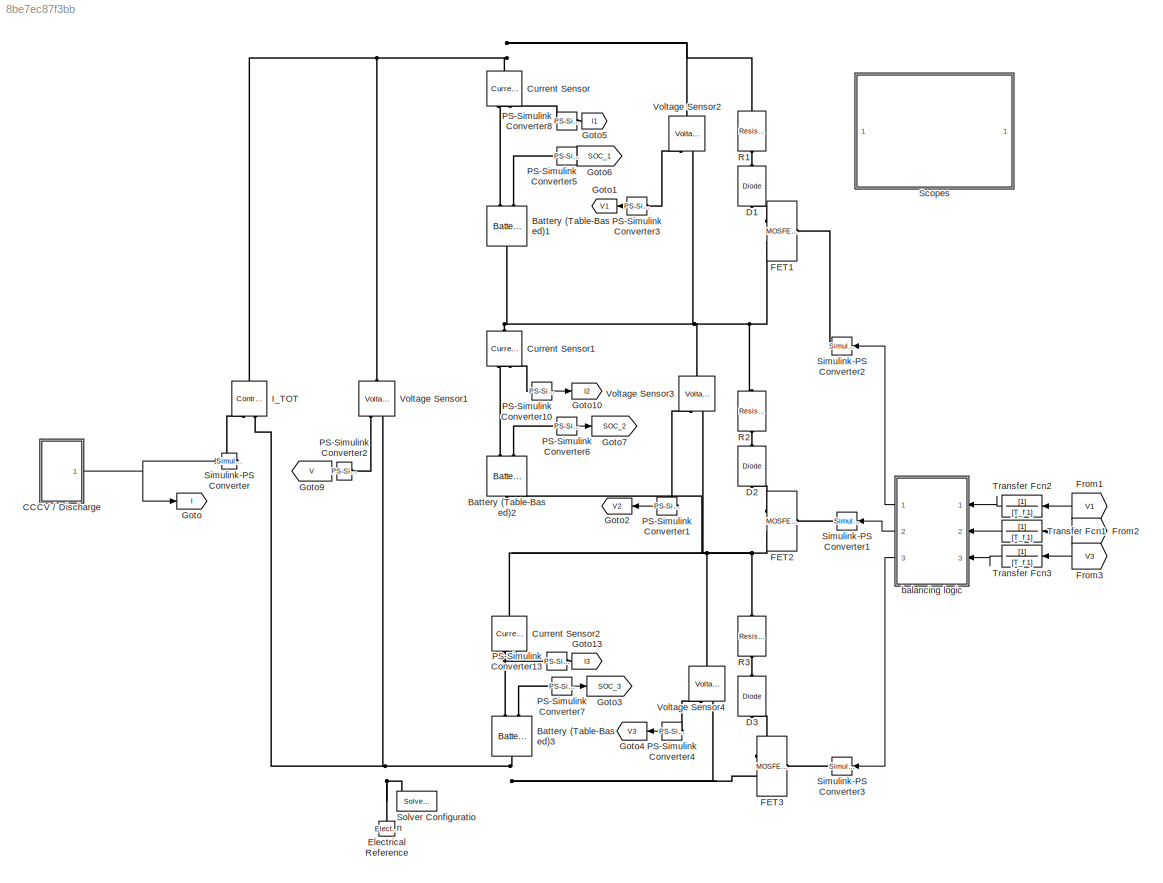
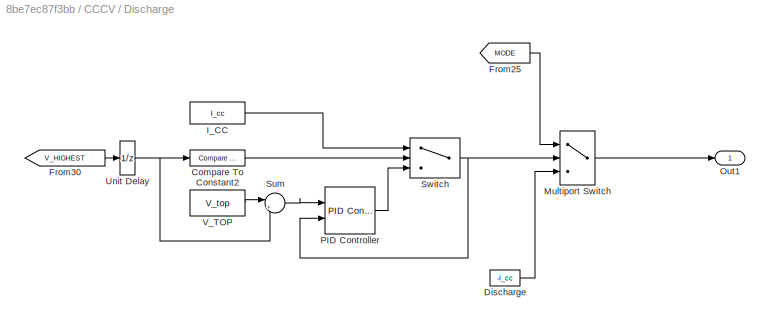
MODEL slx_8be7ec87f3bb
KIND model
CONFIG AbsTol = 1e-3
CONFIG EnableMultiTasking = on
CONFIG FixedStep = auto
CONFIG MaxStep = .5
CONFIG MinStep = auto
CONFIG PreLoadFcn = passiveBalancing_ini;
CONFIG RelTol = 1e-3
CONFIG SampleTimeConstraint = Unconstrained
CONFIG SolverName = ode23t
CONFIG StartTime = 0.0
CONFIG StopTime = 3600 * 15
WORKSPACE source: mxarray member
WORKSPACE Switch = 1
BLOCK [Reference] Battery (Table-Based)1  REF=ee_lib/Sources/Battery
(Table-Based)
  AttributesFormatString = UR18650A
  NameLocation = right
  Ports = [0, 0, 0, 0, 0, 2, 1]
  SourceBlock = ee_lib/Sources/Battery\n(Table-Based)
  SourceProductBaseCode = PS
  SourceType = Battery\n(Table-Based)
  Tag = {'toolbox/physmod/elec/library/m/ee_lib_parts';'Sources/Battery__Table_Based_/Panasonic/UR18650A.xml'}
BLOCK [Reference] Battery (Table-Based)2  REF=ee_lib/Sources/Battery
(Table-Based)
  AttributesFormatString = UR18650A
  NameLocation = right
  Ports = [0, 0, 0, 0, 0, 2, 1]
  SourceBlock = ee_lib/Sources/Battery\n(Table-Based)
  SourceProductBaseCode = PS
  SourceType = Battery\n(Table-Based)
  Tag = {'toolbox/physmod/elec/library/m/ee_lib_parts';'Sources/Battery__Table_Based_/Panasonic/UR18650A.xml'}
BLOCK [Reference] Battery (Table-Based)3  REF=ee_lib/Sources/Battery
(Table-Based)
  AttributesFormatString = UR18650A
  NameLocation = right
  Ports = [0, 0, 0, 0, 0, 2, 1]
  SourceBlock = ee_lib/Sources/Battery\n(Table-Based)
  SourceProductBaseCode = PS
  SourceType = Battery\n(Table-Based)
  Tag = {'toolbox/physmod/elec/library/m/ee_lib_parts';'Sources/Battery__Table_Based_/Panasonic/UR18650A.xml'}
BLOCK [SubSystem] CCCV // Discharge
  Ports = [0, 1]
  RequestExecContextInheritance = off
BLOCK [Reference] CCCV // Discharge/Compare To Constant2  REF=simulink/Logic and Bit
Operations/Compare
To Constant
  Ports = [1, 1]
  SourceBlock = simulink/Logic and Bit\nOperations/Compare\nTo Constant
  SourceProductBaseCode = SL
  SourceType = Compare To Constant
BLOCK [Constant] CCCV // Discharge/Discharge
  Value = -I_cc
BLOCK [From] CCCV // Discharge/From25
  GotoTag = MODE
  TagVisibility = global
BLOCK [From] CCCV // Discharge/From30
  GotoTag = V_HIGHEST
  TagVisibility = global
BLOCK [Constant] CCCV // Discharge/I_CC
  Value = I_cc
BLOCK [MultiPortSwitch] CCCV // Discharge/Multiport Switch
  DataPortIndices = {1,2}
  DataPortOrder = Specify indices
  DiagnosticForDefault = None
  InputSameDT = off
  Ports = [3, 1]
  SaturateOnIntegerOverflow = off
BLOCK [Outport] CCCV // Discharge/Out1
BLOCK [Reference] CCCV // Discharge/PID Controller  REF=pid_lib/PID Controller
  Ports = [2, 1]
  SourceBlock = pid_lib/PID Controller
  SourceProductBaseCode = SL
  SourceType = PID 1dof
BLOCK [Sum] CCCV // Discharge/Sum
  Inputs = |+-
  Ports = [2, 1]
BLOCK [Switch] CCCV // Discharge/Switch
  Criteria = u2 > Threshold
  InputSameDT = off
  SaturateOnIntegerOverflow = off
BLOCK [UnitDelay] CCCV // Discharge/Unit Delay
  HasFrameUpgradeWarning = on
  SampleTime = -1
BLOCK [Constant] CCCV // Discharge/V_TOP
  Value = V_top
BLOCK [Reference] Current Sensor  REF=fl_lib/Electrical/Electrical Sensors/Current Sensor
  NameLocation = left
  Ports = [0, 0, 0, 0, 0, 1, 2]
  SourceBlock = fl_lib/Electrical/Electrical Sensors/Current Sensor
  SourceProductBaseCode = SS
  SourceType = Current Sensor
BLOCK [Reference] Current Sensor1  REF=fl_lib/Electrical/Electrical Sensors/Current Sensor
  NameLocation = left
  Ports = [0, 0, 0, 0, 0, 1, 2]
  SourceBlock = fl_lib/Electrical/Electrical Sensors/Current Sensor
  SourceProductBaseCode = SS
  SourceType = Current Sensor
BLOCK [Reference] Current Sensor2  REF=fl_lib/Electrical/Electrical Sensors/Current Sensor
  NameLocation = left
  Ports = [0, 0, 0, 0, 0, 1, 2]
  SourceBlock = fl_lib/Electrical/Electrical Sensors/Current Sensor
  SourceProductBaseCode = SS
  SourceType = Current Sensor
BLOCK [Reference] D1  REF=fl_lib/Electrical/Electrical Elements/Diode
  NameLocation = left
  Ports = [0, 0, 0, 0, 0, 1, 1]
  SourceBlock = fl_lib/Electrical/Electrical Elements/Diode
  SourceProductBaseCode = SS
  SourceType = Diode
BLOCK [Reference] D2  REF=fl_lib/Electrical/Electrical Elements/Diode
  NameLocation = left
  Ports = [0, 0, 0, 0, 0, 1, 1]
  SourceBlock = fl_lib/Electrical/Electrical Elements/Diode
  SourceProductBaseCode = SS
  SourceType = Diode
BLOCK [Reference] D3  REF=fl_lib/Electrical/Electrical Elements/Diode
  NameLocation = left
  Ports = [0, 0, 0, 0, 0, 1, 1]
  SourceBlock = fl_lib/Electrical/Electrical Elements/Diode
  SourceProductBaseCode = SS
  SourceType = Diode
BLOCK [Reference] Electrical Reference  REF=fl_lib/Electrical/Electrical Elements/Electrical Reference
  NameLocation = right
  Ports = [0, 0, 0, 0, 0, 1]
  SourceBlock = fl_lib/Electrical/Electrical Elements/Electrical Reference
  SourceProductBaseCode = SS
  SourceType = Electrical Reference
BLOCK [Reference] FET1  REF=ee_lib/Semiconductors &
Converters/MOSFET
(Ideal,
Switching)
  Ports = [0, 0, 0, 0, 0, 1, 2]
  SourceBlock = ee_lib/Semiconductors &\nConverters/MOSFET\n(Ideal,\nSwitching)
  SourceProductBaseCode = PS
  SourceType = MOSFET\n(Ideal,\nSwitching)
BLOCK [Reference] FET2  REF=ee_lib/Semiconductors &
Converters/MOSFET
(Ideal,
Switching)
  Ports = [0, 0, 0, 0, 0, 1, 2]
  SourceBlock = ee_lib/Semiconductors &\nConverters/MOSFET\n(Ideal,\nSwitching)
  SourceProductBaseCode = PS
  SourceType = MOSFET\n(Ideal,\nSwitching)
BLOCK [Reference] FET3  REF=ee_lib/Semiconductors &
Converters/MOSFET
(Ideal,
Switching)
  Ports = [0, 0, 0, 0, 0, 1, 2]
  SourceBlock = ee_lib/Semiconductors &\nConverters/MOSFET\n(Ideal,\nSwitching)
  SourceProductBaseCode = PS
  SourceType = MOSFET\n(Ideal,\nSwitching)
BLOCK [From] From1
  GotoTag = V1
  TagVisibility = global
BLOCK [From] From2
  GotoTag = V2
  TagVisibility = global
BLOCK [From] From3
  GotoTag = V3
  TagVisibility = global
BLOCK [Goto] Goto
  GotoTag = I
  TagVisibility = global
BLOCK [Goto] Goto1
  GotoTag = V1
  NameLocation = top
  TagVisibility = global
BLOCK [Goto] Goto10
  GotoTag = I2
  TagVisibility = global
BLOCK [Goto] Goto13
  GotoTag = I3
  TagVisibility = global
BLOCK [Goto] Goto2
  GotoTag = V2
  NameLocation = top
  TagVisibility = global
BLOCK [Goto] Goto3
  GotoTag = SOC_3
  TagVisibility = global
BLOCK [Goto] Goto4
  GotoTag = V3
  NameLocation = top
  TagVisibility = global
BLOCK [Goto] Goto5
  GotoTag = I1
  TagVisibility = global
BLOCK [Goto] Goto6
  GotoTag = SOC_1
  TagVisibility = global
BLOCK [Goto] Goto7
  GotoTag = SOC_2
  TagVisibility = global
BLOCK [Goto] Goto9
  GotoTag = V
  NameLocation = top
  TagVisibility = global
BLOCK [Reference] I_TOT  REF=fl_lib/Electrical/Electrical Sources/Controlled Current
Source
  NameLocation = left
  Ports = [0, 0, 0, 0, 0, 1, 2]
  SourceBlock = fl_lib/Electrical/Electrical Sources/Controlled Current\nSource
  SourceProductBaseCode = SS
  SourceType = Controlled Current\nSource
BLOCK [Reference] PS-Simulink Converter1  REF=nesl_utility/PS-Simulink
Converter
  NameLocation = top
  Ports = [0, 1, 0, 0, 0, 1]
  SourceBlock = nesl_utility/PS-Simulink\nConverter
  SourceProductBaseCode = SS
  SourceType = PS-Simulink\nConverter
BLOCK [Reference] PS-Simulink Converter10  REF=nesl_utility/PS-Simulink
Converter
  Ports = [0, 1, 0, 0, 0, 1]
  SourceBlock = nesl_utility/PS-Simulink\nConverter
  SourceProductBaseCode = SS
  SourceType = PS-Simulink\nConverter
BLOCK [Reference] PS-Simulink Converter13  REF=nesl_utility/PS-Simulink
Converter
  Ports = [0, 1, 0, 0, 0, 1]
  SourceBlock = nesl_utility/PS-Simulink\nConverter
  SourceProductBaseCode = SS
  SourceType = PS-Simulink\nConverter
BLOCK [Reference] PS-Simulink Converter2  REF=nesl_utility/PS-Simulink
Converter
  NameLocation = top
  Ports = [0, 1, 0, 0, 0, 1]
  SourceBlock = nesl_utility/PS-Simulink\nConverter
  SourceProductBaseCode = SS
  SourceType = PS-Simulink\nConverter
BLOCK [Reference] PS-Simulink Converter3  REF=nesl_utility/PS-Simulink
Converter
  NameLocation = top
  Ports = [0, 1, 0, 0, 0, 1]
  SourceBlock = nesl_utility/PS-Simulink\nConverter
  SourceProductBaseCode = SS
  SourceType = PS-Simulink\nConverter
BLOCK [Reference] PS-Simulink Converter4  REF=nesl_utility/PS-Simulink
Converter
  NameLocation = top
  Ports = [0, 1, 0, 0, 0, 1]
  SourceBlock = nesl_utility/PS-Simulink\nConverter
  SourceProductBaseCode = SS
  SourceType = PS-Simulink\nConverter
BLOCK [Reference] PS-Simulink Converter5  REF=nesl_utility/PS-Simulink
Converter
  Ports = [0, 1, 0, 0, 0, 1]
  SourceBlock = nesl_utility/PS-Simulink\nConverter
  SourceProductBaseCode = SS
  SourceType = PS-Simulink\nConverter
BLOCK [Reference] PS-Simulink Converter6  REF=nesl_utility/PS-Simulink
Converter
  Ports = [0, 1, 0, 0, 0, 1]
  SourceBlock = nesl_utility/PS-Simulink\nConverter
  SourceProductBaseCode = SS
  SourceType = PS-Simulink\nConverter
BLOCK [Reference] PS-Simulink Converter7  REF=nesl_utility/PS-Simulink
Converter
  Ports = [0, 1, 0, 0, 0, 1]
  SourceBlock = nesl_utility/PS-Simulink\nConverter
  SourceProductBaseCode = SS
  SourceType = PS-Simulink\nConverter
BLOCK [Reference] PS-Simulink Converter8  REF=nesl_utility/PS-Simulink
Converter
  Ports = [0, 1, 0, 0, 0, 1]
  SourceBlock = nesl_utility/PS-Simulink\nConverter
  SourceProductBaseCode = SS
  SourceType = PS-Simulink\nConverter
BLOCK [Reference] R1  REF=fl_lib/Electrical/Electrical Elements/Resistor
  NameLocation = left
  Ports = [0, 0, 0, 0, 0, 1, 1]
  SourceBlock = fl_lib/Electrical/Electrical Elements/Resistor
  SourceProductBaseCode = SS
  SourceType = Resistor
BLOCK [Reference] R2  REF=fl_lib/Electrical/Electrical Elements/Resistor
  NameLocation = left
  Ports = [0, 0, 0, 0, 0, 1, 1]
  SourceBlock = fl_lib/Electrical/Electrical Elements/Resistor
  SourceProductBaseCode = SS
  SourceType = Resistor
BLOCK [Reference] R3  REF=fl_lib/Electrical/Electrical Elements/Resistor
  NameLocation = left
  Ports = [0, 0, 0, 0, 0, 1, 1]
  SourceBlock = fl_lib/Electrical/Electrical Elements/Resistor
  SourceProductBaseCode = SS
  SourceType = Resistor
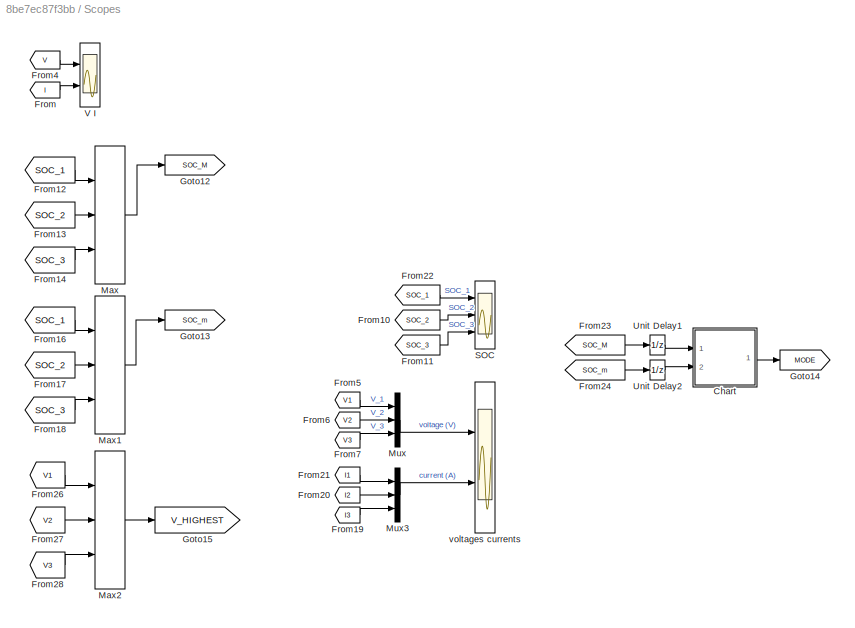
BLOCK [SubSystem] Scopes
  Ports = []
  RequestExecContextInheritance = off
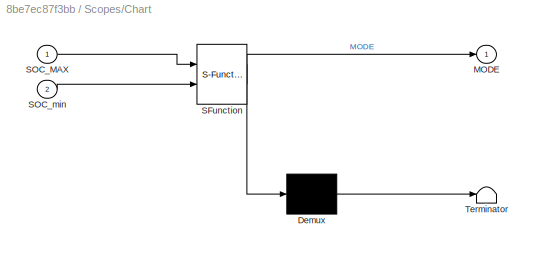
BLOCK [SubSystem] Scopes/Chart
  ErrorFcn = Stateflow.Translate.translate
  PermitHierarchicalResolution = ExplicitOnly
  Ports = [2, 1]
  RequestExecContextInheritance = off
  SFBlockType = Chart
  TreatAsAtomicUnit = on
BLOCK [Demux] Scopes/Chart/ Demux 
  Outputs = 1
  Ports = [1, 1]
BLOCK [S-Function] Scopes/Chart/ SFunction 
  EnableBusSupport = on
  FunctionName = sf_sfun
  PortCounts = [2 2]
  Ports = [2, 2]
  SFcnIsStateOwnerBlock = off
  SFunctionDeploymentMode = off
  Tag = Stateflow S-Function 3
BLOCK [Terminator] Scopes/Chart/ Terminator 
BLOCK [Outport] Scopes/Chart/MODE
BLOCK [Inport] Scopes/Chart/SOC_MAX
BLOCK [Inport] Scopes/Chart/SOC_min
  Port = 2
BLOCK [From] Scopes/From
  GotoTag = I
  TagVisibility = global
BLOCK [From] Scopes/From10
  GotoTag = SOC_2
  TagVisibility = global
BLOCK [From] Scopes/From11
  GotoTag = SOC_3
  TagVisibility = global
BLOCK [From] Scopes/From12
  GotoTag = SOC_1
  TagVisibility = global
BLOCK [From] Scopes/From13
  GotoTag = SOC_2
  TagVisibility = global
BLOCK [From] Scopes/From14
  GotoTag = SOC_3
  TagVisibility = global
BLOCK [From] Scopes/From16
  GotoTag = SOC_1
  TagVisibility = global
BLOCK [From] Scopes/From17
  GotoTag = SOC_2
  TagVisibility = global
BLOCK [From] Scopes/From18
  GotoTag = SOC_3
  TagVisibility = global
BLOCK [From] Scopes/From19
  GotoTag = I3
  TagVisibility = global
BLOCK [From] Scopes/From20
  GotoTag = I2
  TagVisibility = global
BLOCK [From] Scopes/From21
  GotoTag = I1
  TagVisibility = global
BLOCK [From] Scopes/From22
  GotoTag = SOC_1
  TagVisibility = global
BLOCK [From] Scopes/From23
  GotoTag = SOC_M
  TagVisibility = global
BLOCK [From] Scopes/From24
  GotoTag = SOC_m
  TagVisibility = global
BLOCK [From] Scopes/From26
  GotoTag = V1
  TagVisibility = global
BLOCK [From] Scopes/From27
  GotoTag = V2
  TagVisibility = global
BLOCK [From] Scopes/From28
  GotoTag = V3
  TagVisibility = global
BLOCK [From] Scopes/From4
  GotoTag = V
  TagVisibility = global
BLOCK [From] Scopes/From5
  GotoTag = V1
  TagVisibility = global
BLOCK [From] Scopes/From6
  GotoTag = V2
  TagVisibility = global
BLOCK [From] Scopes/From7
  GotoTag = V3
  TagVisibility = global
BLOCK [Goto] Scopes/Goto12
  GotoTag = SOC_M
  TagVisibility = global
BLOCK [Goto] Scopes/Goto13
  GotoTag = SOC_m
  TagVisibility = global
BLOCK [Goto] Scopes/Goto14
  GotoTag = MODE
  TagVisibility = global
BLOCK [Goto] Scopes/Goto15
  GotoTag = V_HIGHEST
  TagVisibility = global
BLOCK [MinMax] Scopes/Max
  Function = max
  Inputs = 3
  Ports = [3, 1]
BLOCK [MinMax] Scopes/Max1
  Inputs = 3
  Ports = [3, 1]
BLOCK [MinMax] Scopes/Max2
  Function = max
  Inputs = 3
  Ports = [3, 1]
BLOCK [Mux] Scopes/Mux
  DisplayOption = bar
  Inputs = 3
  Ports = [3, 1]
BLOCK [Mux] Scopes/Mux3
  DisplayOption = bar
  Inputs = 3
  NameLocation = top
  Ports = [3, 1]
BLOCK [Scope] Scopes/SOC
  Floating = off
  NumInputPorts = 3
  Ports = [3]
  ScopeSpecificationString = Simulink.scopes.TimeScopeBlockCfg('CurrentConfiguration', extmgr.ConfigurationSet(extmgr.Configuration('Core','General UI',true),extmgr.Configuration('Core','Source UI',true),extmgr.Configuration('Sources','WiredSimulink',true,'DataLoggingVariableName','ScopeData1'),extmgr.Configuration('Visuals','Time Domain',true,'SerializedDisplays',{struct('MinYLimReal','0.1076','MaxYLimReal','1.02103','YLabel...<+2002ch>
BLOCK [UnitDelay] Scopes/Unit Delay1
  HasFrameUpgradeWarning = on
  InitialCondition = 1
  SampleTime = -1
BLOCK [UnitDelay] Scopes/Unit Delay2
  HasFrameUpgradeWarning = on
  InitialCondition = 1
  SampleTime = -1
BLOCK [Scope] Scopes/V I
  Floating = off
  NumInputPorts = 2
  Ports = [2]
  ScopeSpecificationString = Simulink.scopes.TimeScopeBlockCfg('CurrentConfiguration', extmgr.ConfigurationSet(extmgr.Configuration('Core','General UI',true),extmgr.Configuration('Core','Source UI',true),extmgr.Configuration('Sources','WiredSimulink',true),extmgr.Configuration('Visuals','Time Domain',true,'SerializedDisplays',{struct('MinYLimReal','10.67877','MaxYLimReal','11.98894','YLabelReal','Voltage(V)','MinYLimMag','10....<+2278ch>
BLOCK [Scope] Scopes/voltages currents
  Floating = off
  NumInputPorts = 2
  Ports = [2]
  ScopeSpecificationString = Simulink.scopes.TimeScopeBlockCfg('CurrentConfiguration', extmgr.ConfigurationSet(extmgr.Configuration('Core','General UI',true),extmgr.Configuration('Core','Source UI',true),extmgr.Configuration('Sources','WiredSimulink',true,'DataLoggingVariableName','ScopeData3'),extmgr.Configuration('Visuals','Time Domain',true,'SerializedDisplays',{struct('MinYLimReal','3.44279','MaxYLimReal','4.17778','YLabe...<+2357ch>
BLOCK [Reference] Simulink-PS Converter  REF=nesl_utility/Simulink-PS
Converter
  Ports = [1, 0, 0, 0, 0, 0, 1]
  SourceBlock = nesl_utility/Simulink-PS\nConverter
  SourceProductBaseCode = SS
  SourceType = Simulink-PS\nConverter
BLOCK [Reference] Simulink-PS Converter1  REF=nesl_utility/Simulink-PS
Converter
  Ports = [1, 0, 0, 0, 0, 0, 1]
  SourceBlock = nesl_utility/Simulink-PS\nConverter
  SourceProductBaseCode = SS
  SourceType = Simulink-PS\nConverter
BLOCK [Reference] Simulink-PS Converter2  REF=nesl_utility/Simulink-PS
Converter
  Ports = [1, 0, 0, 0, 0, 0, 1]
  SourceBlock = nesl_utility/Simulink-PS\nConverter
  SourceProductBaseCode = SS
  SourceType = Simulink-PS\nConverter
BLOCK [Reference] Simulink-PS Converter3  REF=nesl_utility/Simulink-PS
Converter
  Ports = [1, 0, 0, 0, 0, 0, 1]
  SourceBlock = nesl_utility/Simulink-PS\nConverter
  SourceProductBaseCode = SS
  SourceType = Simulink-PS\nConverter
BLOCK [Reference] Solver Configuration  REF=nesl_utility/Solver
Configuration
  Ports = [0, 0, 0, 0, 0, 0, 1]
  SourceBlock = nesl_utility/Solver\nConfiguration
  SourceProductBaseCode = SS
  SourceType = Solver\nConfiguration
BLOCK [TransferFcn] Transfer Fcn1
  Denominator = [T_f 1]
BLOCK [TransferFcn] Transfer Fcn2
  Denominator = [T_f 1]
BLOCK [TransferFcn] Transfer Fcn3
  Denominator = [T_f 1]
BLOCK [Reference] Voltage Sensor1  REF=fl_lib/Electrical/Electrical Sensors/Voltage Sensor
  NameLocation = right
  Ports = [0, 0, 0, 0, 0, 1, 2]
  SourceBlock = fl_lib/Electrical/Electrical Sensors/Voltage Sensor
  SourceProductBaseCode = SS
  SourceType = Voltage Sensor
BLOCK [Reference] Voltage Sensor2  REF=fl_lib/Electrical/Electrical Sensors/Voltage Sensor
  NameLocation = right
  Ports = [0, 0, 0, 0, 0, 1, 2]
  SourceBlock = fl_lib/Electrical/Electrical Sensors/Voltage Sensor
  SourceProductBaseCode = SS
  SourceType = Voltage Sensor
BLOCK [Reference] Voltage Sensor3  REF=fl_lib/Electrical/Electrical Sensors/Voltage Sensor
  NameLocation = right
  Ports = [0, 0, 0, 0, 0, 1, 2]
  SourceBlock = fl_lib/Electrical/Electrical Sensors/Voltage Sensor
  SourceProductBaseCode = SS
  SourceType = Voltage Sensor
BLOCK [Reference] Voltage Sensor4  REF=fl_lib/Electrical/Electrical Sensors/Voltage Sensor
  NameLocation = right
  Ports = [0, 0, 0, 0, 0, 1, 2]
  SourceBlock = fl_lib/Electrical/Electrical Sensors/Voltage Sensor
  SourceProductBaseCode = SS
  SourceType = Voltage Sensor
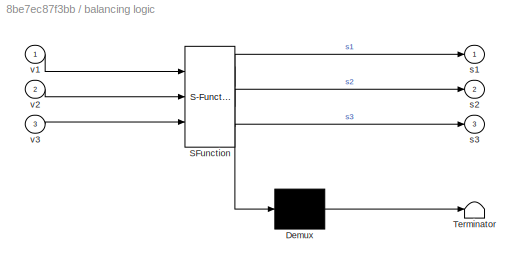
BLOCK [SubSystem] balancing logic
  ErrorFcn = Stateflow.Translate.translate
  NameLocation = top
  PermitHierarchicalResolution = ExplicitOnly
  Ports = [3, 3]
  RequestExecContextInheritance = off
  SFBlockType = Chart
  TreatAsAtomicUnit = on
  VariantControl = (default)
BLOCK [Demux] balancing logic/ Demux 
  Outputs = 1
  Ports = [1, 1]
BLOCK [S-Function] balancing logic/ SFunction 
  EnableBusSupport = on
  FunctionName = sf_sfun
  Parameters = dV
  PortCounts = [3 4]
  Ports = [3, 4]
  SFcnIsStateOwnerBlock = off
  SFunctionDeploymentMode = off
  Tag = Stateflow S-Function 1
BLOCK [Terminator] balancing logic/ Terminator 
BLOCK [Outport] balancing logic/s1
  VectorParamsAs1DForOutWhenUnconnected = off
BLOCK [Outport] balancing logic/s2
  Port = 2
  VectorParamsAs1DForOutWhenUnconnected = off
BLOCK [Outport] balancing logic/s3
  Port = 3
  VectorParamsAs1DForOutWhenUnconnected = off
BLOCK [Inport] balancing logic/v1
BLOCK [Inport] balancing logic/v2
  Port = 2
BLOCK [Inport] balancing logic/v3
  Port = 3
LINE CCCV // Discharge/Compare To Constant2:1 -> CCCV // Discharge/Switch:2
LINE CCCV // Discharge/Discharge:1 -> CCCV // Discharge/Multiport Switch:3
LINE CCCV // Discharge/From25:1 -> CCCV // Discharge/Multiport Switch:1
LINE CCCV // Discharge/From30:1 -> CCCV // Discharge/Unit Delay:1
LINE CCCV // Discharge/I_CC:1 -> CCCV // Discharge/Switch:1
LINE CCCV // Discharge/Multiport Switch:1 -> CCCV // Discharge/Out1:1
LINE CCCV // Discharge/PID Controller:1 -> CCCV // Discharge/Switch:3
LINE CCCV // Discharge/Sum:1 -> CCCV // Discharge/PID Controller:1
NET CCCV // Discharge/Switch:1 -> CCCV // Discharge/Multiport Switch:2, CCCV // Discharge/PID Controller:2
NET CCCV // Discharge/Unit Delay:1 -> CCCV // Discharge/Compare To Constant2:1, CCCV // Discharge/Sum:2
LINE CCCV // Discharge/V_TOP:1 -> CCCV // Discharge/Sum:1
NET CCCV // Discharge:1 -> Goto:1, Simulink-PS Converter:1
LINE From1:1 -> Transfer Fcn2:1
LINE From2:1 -> Transfer Fcn1:1
LINE From3:1 -> Transfer Fcn3:1
LINE PS-Simulink Converter10:1 -> Goto10:1
LINE PS-Simulink Converter13:1 -> Goto13:1
LINE PS-Simulink Converter1:1 -> Goto2:1
LINE PS-Simulink Converter2:1 -> Goto9:1
LINE PS-Simulink Converter3:1 -> Goto1:1
LINE PS-Simulink Converter4:1 -> Goto4:1
LINE PS-Simulink Converter5:1 -> Goto6:1
LINE PS-Simulink Converter6:1 -> Goto7:1
LINE PS-Simulink Converter7:1 -> Goto3:1
LINE PS-Simulink Converter8:1 -> Goto5:1
LINE Scopes/Chart:1 -> Scopes/Goto14:1
LINE Scopes/From10:1 -> Scopes/SOC:2
LINE Scopes/From11:1 -> Scopes/SOC:3
LINE Scopes/From12:1 -> Scopes/Max:1
LINE Scopes/From13:1 -> Scopes/Max:2
LINE Scopes/From14:1 -> Scopes/Max:3
LINE Scopes/From16:1 -> Scopes/Max1:1
LINE Scopes/From17:1 -> Scopes/Max1:2
LINE Scopes/From18:1 -> Scopes/Max1:3
LINE Scopes/From19:1 -> Scopes/Mux3:3
LINE Scopes/From20:1 -> Scopes/Mux3:2
LINE Scopes/From21:1 -> Scopes/Mux3:1
LINE Scopes/From22:1 -> Scopes/SOC:1
LINE Scopes/From23:1 -> Scopes/Unit Delay1:1
LINE Scopes/From24:1 -> Scopes/Unit Delay2:1
LINE Scopes/From26:1 -> Scopes/Max2:1
LINE Scopes/From27:1 -> Scopes/Max2:2
LINE Scopes/From28:1 -> Scopes/Max2:3
LINE Scopes/From4:1 -> Scopes/V I:1
LINE Scopes/From5:1 -> Scopes/Mux:1
LINE Scopes/From6:1 -> Scopes/Mux:2
LINE Scopes/From7:1 -> Scopes/Mux:3
LINE Scopes/From:1 -> Scopes/V I:2
LINE Scopes/Max1:1 -> Scopes/Goto13:1
LINE Scopes/Max2:1 -> Scopes/Goto15:1
LINE Scopes/Max:1 -> Scopes/Goto12:1
LINE Scopes/Mux3:1 -> Scopes/voltages currents:2
LINE Scopes/Mux:1 -> Scopes/voltages currents:1
LINE Scopes/Unit Delay1:1 -> Scopes/Chart:1
LINE Scopes/Unit Delay2:1 -> Scopes/Chart:2
LINE Transfer Fcn1:1 -> balancing logic:2
LINE Transfer Fcn2:1 -> balancing logic:1
LINE Transfer Fcn3:1 -> balancing logic:3
LINE balancing logic:1 -> Simulink-PS Converter2:1
LINE balancing logic:2 -> Simulink-PS Converter1:1
LINE balancing logic:3 -> Simulink-PS Converter3:1
PLINE Battery (Table-Based)1:LConn1 -- Current Sensor:RConn2
PLINE Battery (Table-Based)1:LConn2 -- PS-Simulink Converter5:LConn1
PNET net1: Battery (Table-Based)1:RConn1 -- Current Sensor1:LConn1 -- FET1:RConn2 -- R2:LConn1 -- Voltage Sensor2:RConn2 -- Voltage Sensor3:LConn1
PLINE Battery (Table-Based)2:LConn1 -- Current Sensor1:RConn2
PLINE Battery (Table-Based)2:LConn2 -- PS-Simulink Converter6:LConn1
PNET net2: Battery (Table-Based)2:RConn1 -- Current Sensor2:LConn1 -- FET2:RConn2 -- R3:LConn1 -- Voltage Sensor3:RConn2 -- Voltage Sensor4:LConn1
PLINE Battery (Table-Based)3:LConn1 -- Current Sensor2:RConn2
PLINE Battery (Table-Based)3:LConn2 -- PS-Simulink Converter7:LConn1
PNET net3: Battery (Table-Based)3:RConn1 -- Electrical Reference:LConn1 -- FET3:RConn2 -- I_TOT:RConn2 -- Solver Configuration:RConn1 -- Voltage Sensor1:RConn2 -- Voltage Sensor4:RConn2
PLINE Current Sensor1:RConn1 -- PS-Simulink Converter10:LConn1
PLINE Current Sensor2:RConn1 -- PS-Simulink Converter13:LConn1
PNET net4: Current Sensor:LConn1 -- I_TOT:LConn1 -- R1:LConn1 -- Voltage Sensor1:LConn1 -- Voltage Sensor2:LConn1
PLINE Current Sensor:RConn1 -- PS-Simulink Converter8:LConn1
PLINE D1:LConn1 -- R1:RConn1
PLINE D1:RConn1 -- FET1:RConn1
PLINE D2:LConn1 -- R2:RConn1
PLINE D2:RConn1 -- FET2:RConn1
PLINE D3:LConn1 -- R3:RConn1
PLINE D3:RConn1 -- FET3:RConn1
PLINE FET1:LConn1 -- Simulink-PS Converter2:RConn1
PLINE FET2:LConn1 -- Simulink-PS Converter1:RConn1
PLINE FET3:LConn1 -- Simulink-PS Converter3:RConn1
PLINE I_TOT:RConn1 -- Simulink-PS Converter:RConn1
PLINE PS-Simulink Converter1:LConn1 -- Voltage Sensor3:RConn1
PLINE PS-Simulink Converter2:LConn1 -- Voltage Sensor1:RConn1
PLINE PS-Simulink Converter3:LConn1 -- Voltage Sensor2:RConn1
PLINE PS-Simulink Converter4:LConn1 -- Voltage Sensor4:RConn1
note: NET lines group one-source signal fan-out (src -> all destinations, sorted); 1:1 wires keep LINE; PNET lines group multi-terminal physical nets as a canonical sorted terminal list (undirected conserving connections); 2-terminal nets keep the pairwise PLINE form
CHART balancing
logic states=7 transitions=14
  STATE_LABEL 'lowidx = lowestCell(a,b,c)'
  STATE_LABEL "SCRIPT:\nfunction lowidx = lowestCell(a,b,c)\n[~,k] = sort([a,b,c],'ascend');\nlowidx = k(1);\n \n"
  STATE_LABEL 'finish\nentry: s1 = 0;\n s2 = 0;\n s3 = 0;'
  STATE_LABEL 'init\nentry: s1 = 0;\n s2 = 0;\n s3 = 0;'
  STATE_LABEL 'balancing\nduring: lowest = lowestCell(v1,v2,v3);'
  STATE_LABEL 'cell3_low\nentry: s1 = 1;\n s2 = 1;\n s3 = 0;\nexit: s1 = 0;\n s2 = 0;\n s3 = 0;'
  STATE_LABEL 'cell2_low\nentry: s1 = 1;\n s3 = 1;\n s2 = 0;\nexit: s1 = 0;\n s3 = 0;\n s2 = 0;'
  STATE_LABEL 'cell1_low\nentry: s2 = 1;\n s3 = 1;\n s1 = 0;\nexit: s1 = 0;\n s3 = 0;\n s2 = 0;'
  STATE_LABEL '{lowest = lowestCell(v1,v2,v3);}'
  STATE_LABEL '[lowest==3]'
  STATE_LABEL '[lowest==1]'
  STATE_LABEL '[lowest==2]'
  STATE_LABEL '[lowest==1]'
  STATE_LABEL '[lowest==2]'
  STATE_LABEL '[lowest==3]'
  STATE_LABEL '[lowest==2]'
  STATE_LABEL '[lowest==1]'
  STATE_LABEL '[lowest==3]'
  STATE_LABEL 'cell3_low\nentry: s1 = 1;\n s2 = 1;\n s3 = 0;\nexit: s1 = 0;\n s2 = 0;\n s3 = 0;'
  STATE_LABEL 'cell2_low\nentry: s1 = 1;\n s3 = 1;\n s2 = 0;\nexit: s1 = 0;\n s3 = 0;\n s2 = 0;'
  STATE_LABEL 'cell1_low\nentry: s2 = 1;\n s3 = 1;\n s1 = 0;\nexit: s1 = 0;\n s3 = 0;\n s2 = 0;'
CHART Scopes/Chart states=3 transitions=8
  STATE_LABEL 'wait'
  STATE_LABEL 'DISCHARGE\nduring: MODE = 2;'
  STATE_LABEL 'CHARGE\nduring: MODE = 1;'
CHART  states=0 transitions=0
CHART  states=0 transitions=0
